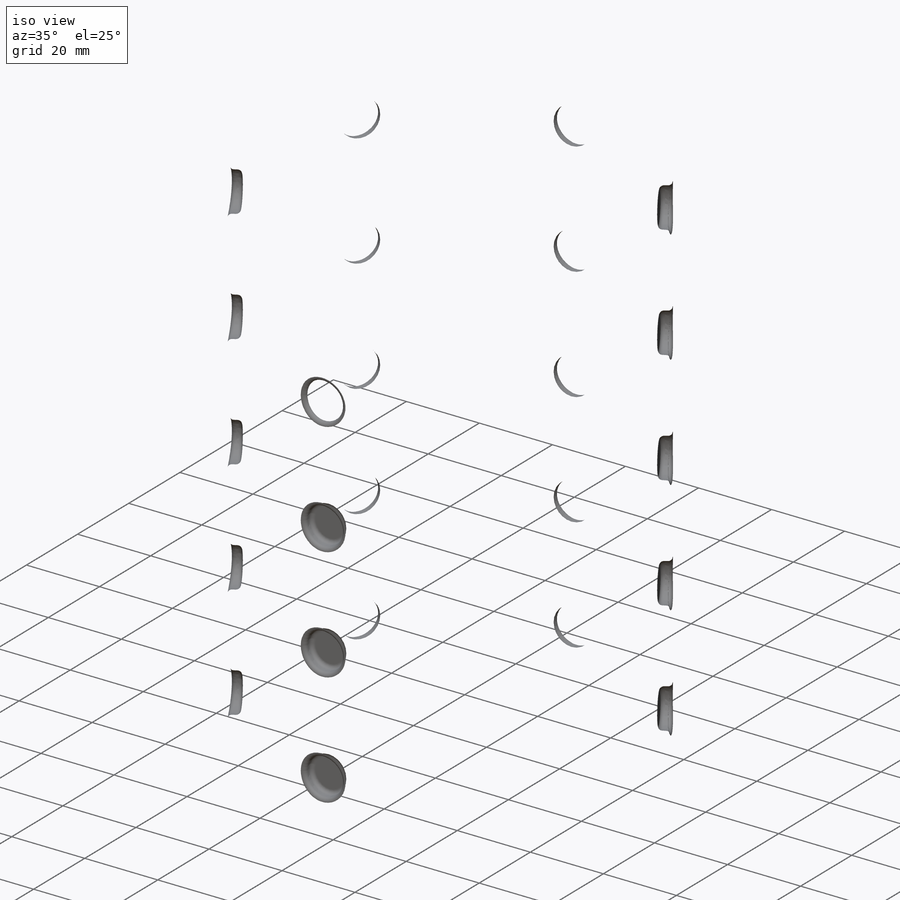
[diagram: iso view]
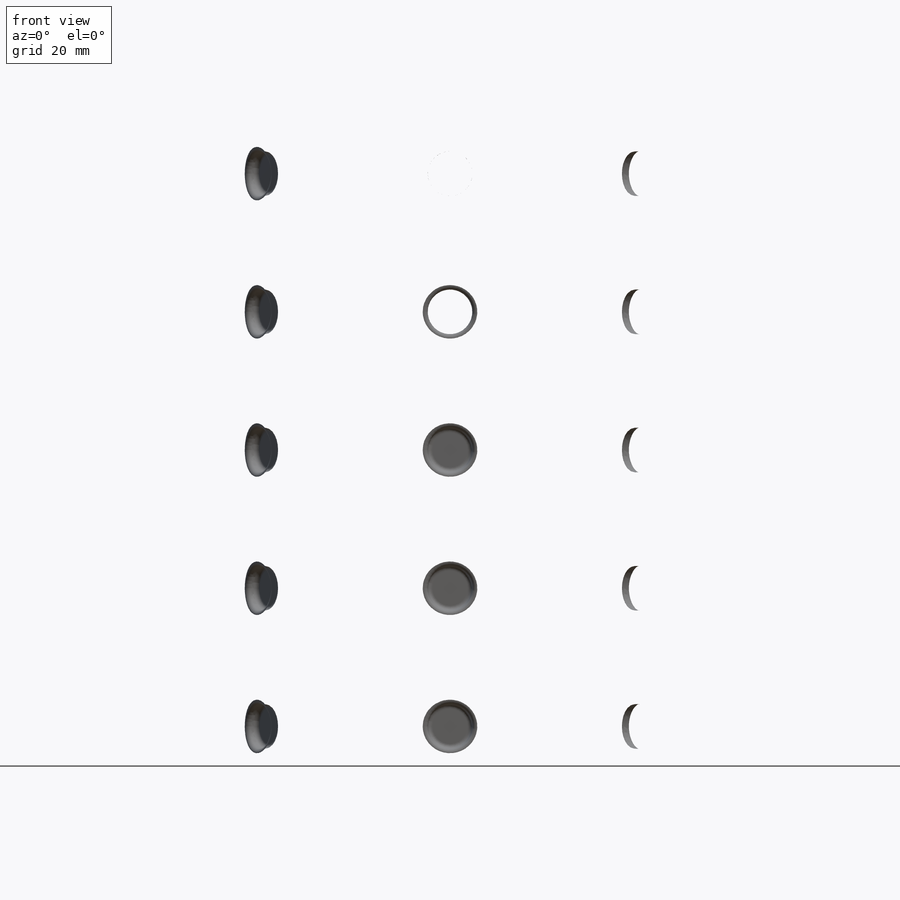
[diagram: front view]
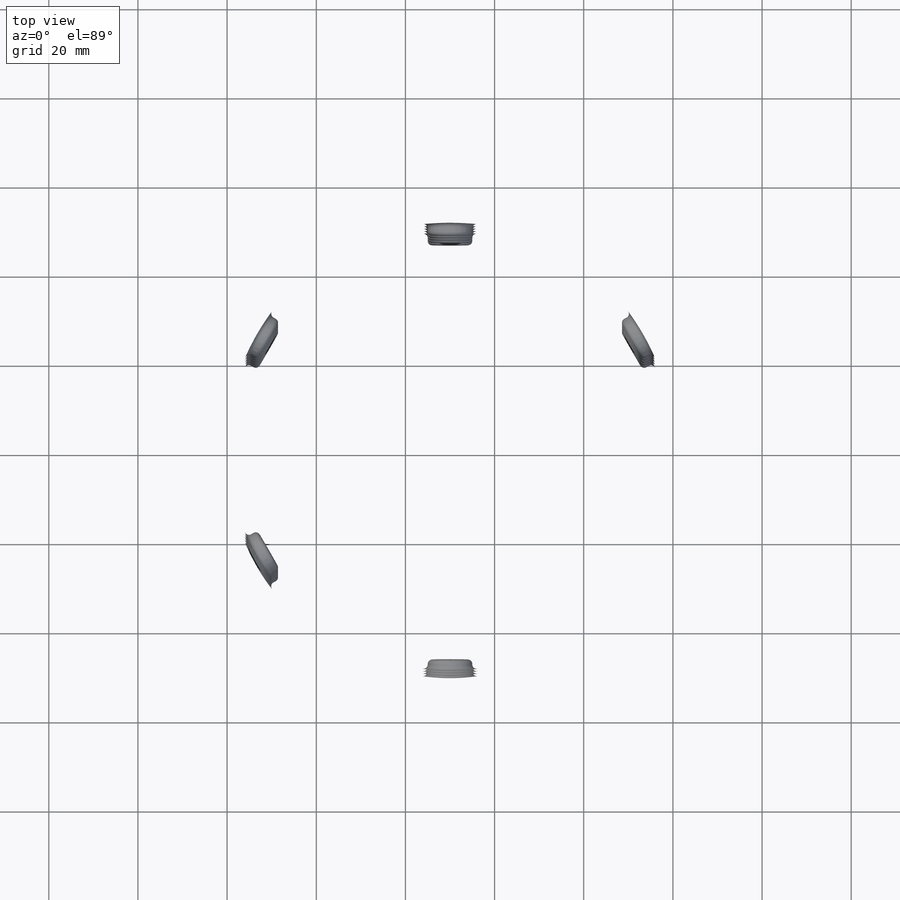
[diagram: top view]
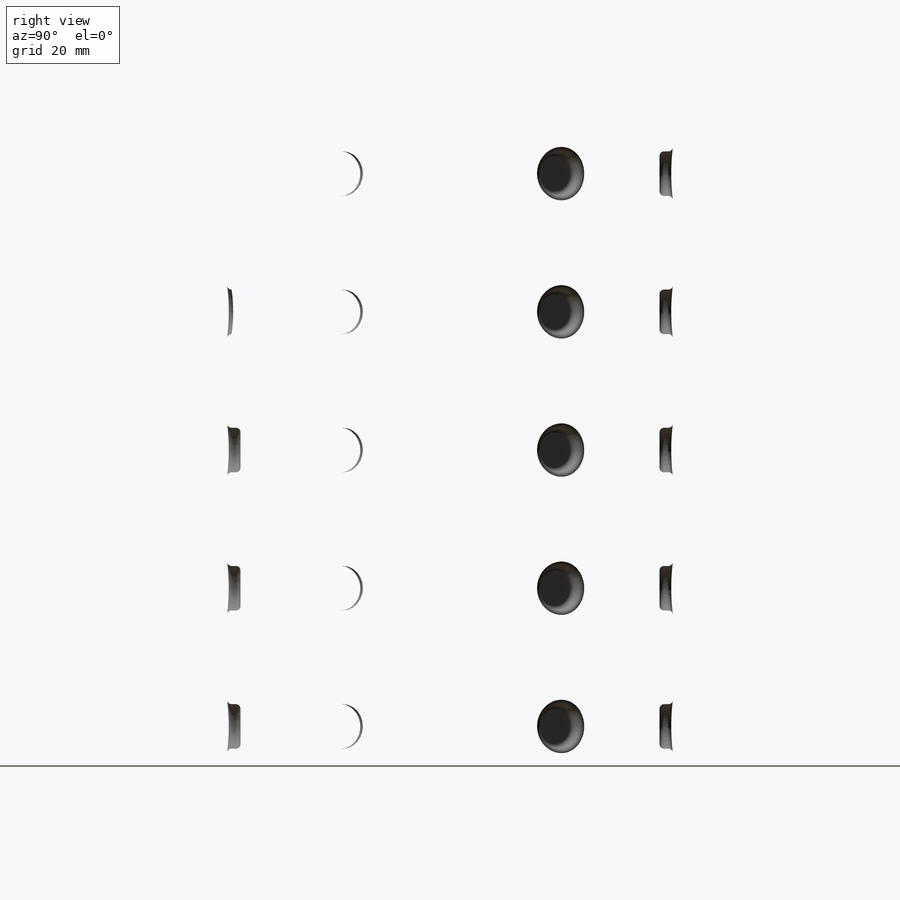
[diagram: right view]
SOLIDWORKS PART (.sldprt)
format: sldprt  version: not decoded by parser v0  size: 1,809,920 bytes
history: native  units: mm
features: plane x4, sketch x4, revolve x2, fillet x2, move_body x2, material x1, pattern_circular x1, shell x1 (+8 scaffold rows collapsed)
feature tree (25):
  scaffold x8  (default folders/planes/origin — collapsed)
  material  "Material <nicht festgelegt>"
  plane  "Ebene vorne"
  plane  "Ebene oben"
  plane  "Ebene rechts"
  sketch  "Skizze1"  dims[D1=200.0mm D2=100.0mm]
  revolve  "Rotation1"  Angle=360deg
  sketch  "Skizze2"  dims[D4=1.0mm D1=20.0mm D2=10.0mm D3=3.0mm]
  revolve  "Rotation2"  Angle=360deg
  fillet  "Verrundung1"  Radius=1mm
  sketch  "Skizze3"  dims[c1.D1=26.0mm c2.D1=6.0 c2.D3=50.0mm c2.D2=1.0 c2.D4=50.0mm]
  move_body  "Körper-Verschieben/Kopieren1"
  move_body  "Körper-Verschieben/Kopieren2"
  plane  "Ebene1"
  sketch  "Skizze4"  dims[D1=35.0mm]
  fillet  "Kurvenmuster3"  Radius=5
  pattern_circular  "Kreismuster1"  Count=6 Angle=360deg
  shell  "Wandung1"  Thickness=1mm
decode coverage: 10 of 12 modeling features carry decoded parameters
note: suppression state not decoded; provenance and decode notes live in map.json
